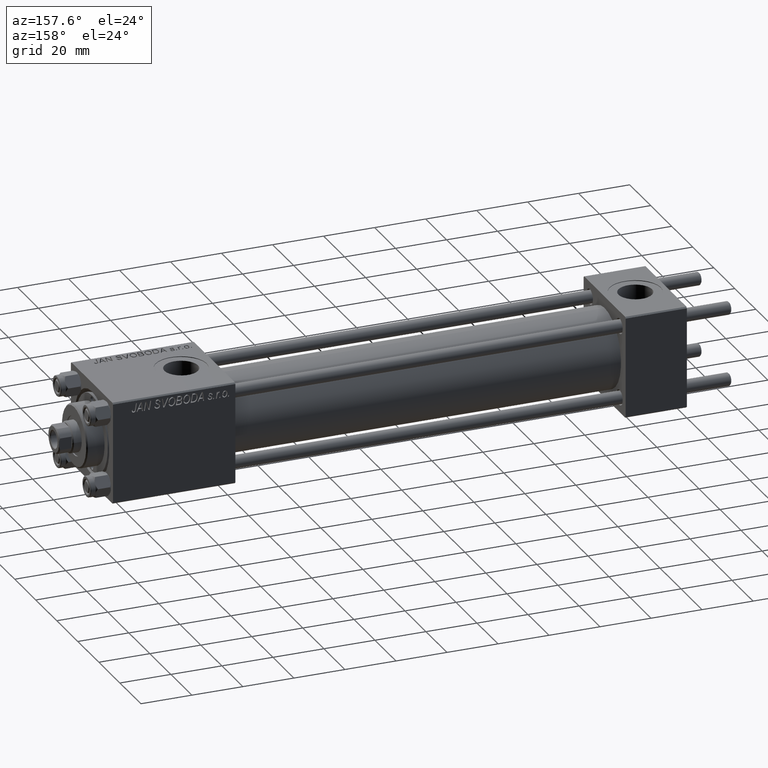
[diagram: clean part render]
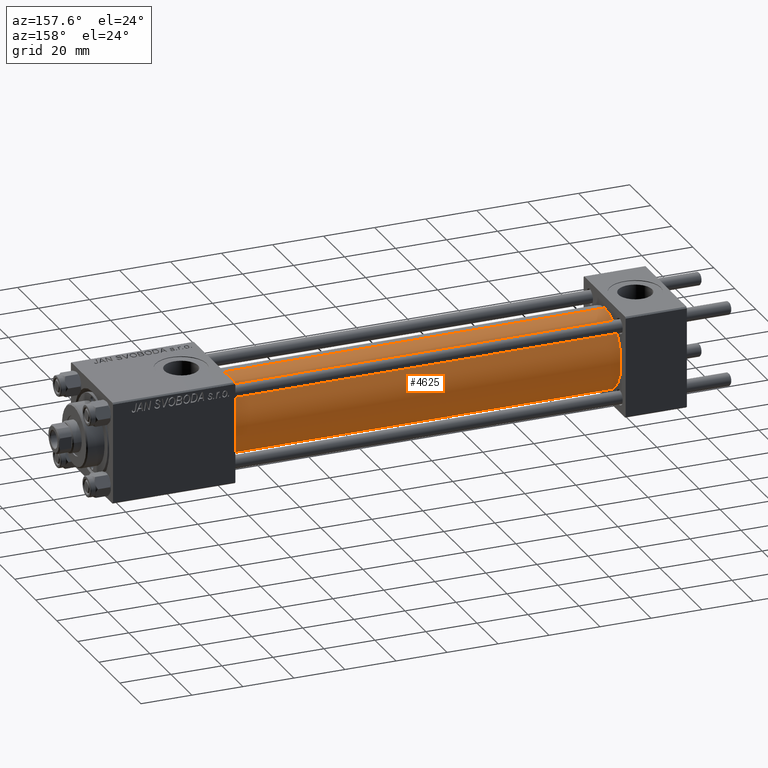
[diagram: same view with one face highlighted and labeled with its STEP entity id]
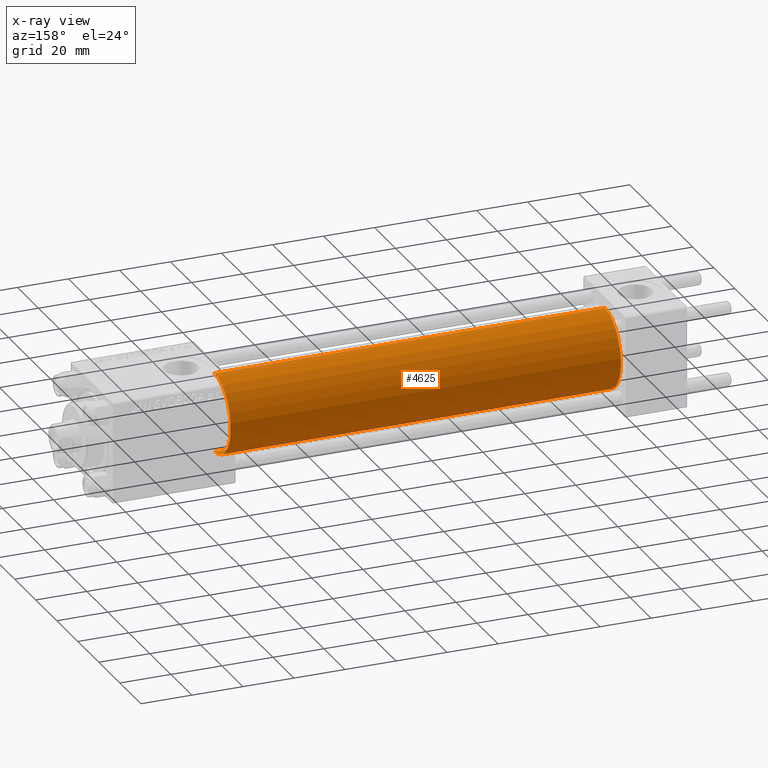
[diagram: x-ray of the same camera — body ghosted, the highlighted face saturated]
A machine part, auxiliary view. The second image highlights one B-rep face of the part: STEP entity #4625.
The next image is the same camera in x-ray: the body ghosted, the highlighted face saturated — about 0% of this face is hidden behind the body in this view.
In plain terms, the highlighted cylindrical surface (partial cylindrical patch) has radius 15.5 mm, axis along (-1, -0, -0).
Its self-contained STEP definition (entity closure, byte-faithful):
#1063 = CIRCLE ( 'NONE', #30111, 15.50000000000000000 ) ;
#1767 = LINE ( 'NONE', #43703, #13342 ) ;
#1810 = ORIENTED_EDGE ( 'NONE', *, *, #26476, .F. ) ;
#4101 = CARTESIAN_POINT ( 'NONE',  ( 23.99999999999999289, 0.000000000000000000, 15.50000000000000000 ) ) ;
#4625 = ADVANCED_FACE ( 'NONE', ( #19339 ), #15071, .T. ) ;
#4649 = AXIS2_PLACEMENT_3D ( 'NONE', #45399, #30016, #26226 ) ;
#4922 = VERTEX_POINT ( 'NONE', #4101 ) ;
#5912 = DIRECTION ( 'NONE',  ( -1.000000000000000000, -0.000000000000000000, -0.000000000000000000 ) ) ;
#6434 = CARTESIAN_POINT ( 'NONE',  ( 177.0000000000000000, 1.898202538678397557E-15, -15.50000000000000000 ) ) ;
#8932 = VERTEX_POINT ( 'NONE', #6434 ) ;
#13342 = VECTOR ( 'NONE', #28065, 1000.000000000000000 ) ;
#14820 = DIRECTION ( 'NONE',  ( 0.000000000000000000, 0.000000000000000000, 1.000000000000000000 ) ) ;
#14885 = DIRECTION ( 'NONE',  ( 1.000000000000000000, 0.000000000000000000, 0.000000000000000000 ) ) ;
#15029 = EDGE_CURVE ( 'NONE', #8932, #47889, #1767, .T. ) ;
#15071 = CYLINDRICAL_SURFACE ( 'NONE', #24256, 15.50000000000000000 ) ;
#17654 = VECTOR ( 'NONE', #5912, 1000.000000000000000 ) ;
#19339 = FACE_OUTER_BOUND ( 'NONE', #45538, .T. ) ;
#24256 = AXIS2_PLACEMENT_3D ( 'NONE', #45599, #34725, #14820 ) ;
#24368 = CARTESIAN_POINT ( 'NONE',  ( 177.0000000000000000, 0.000000000000000000, 15.50000000000000000 ) ) ;
#24668 = CARTESIAN_POINT ( 'NONE',  ( 177.0000000000000000, 0.000000000000000000, 15.50000000000000000 ) ) ;
#26226 = DIRECTION ( 'NONE',  ( 0.000000000000000000, 0.000000000000000000, -1.000000000000000000 ) ) ;
#26476 = EDGE_CURVE ( 'NONE', #8932, #44126, #33673, .T. ) ;
#28065 = DIRECTION ( 'NONE',  ( -1.000000000000000000, -0.000000000000000000, -0.000000000000000000 ) ) ;
#28660 = LINE ( 'NONE', #24368, #17654 ) ;
#30016 = DIRECTION ( 'NONE',  ( 1.000000000000000000, 0.000000000000000000, 0.000000000000000000 ) ) ;
#30111 = AXIS2_PLACEMENT_3D ( 'NONE', #49437, #14885, #30275 ) ;
#30275 = DIRECTION ( 'NONE',  ( 0.000000000000000000, 0.000000000000000000, 1.000000000000000000 ) ) ;
#31916 = EDGE_CURVE ( 'NONE', #44126, #4922, #28660, .T. ) ;
#33673 = CIRCLE ( 'NONE', #4649, 15.50000000000000000 ) ;
#34484 = CARTESIAN_POINT ( 'NONE',  ( 23.99999999999999289, 1.898202538678397557E-15, -15.50000000000000000 ) ) ;
#34725 = DIRECTION ( 'NONE',  ( -1.000000000000000000, -0.000000000000000000, -0.000000000000000000 ) ) ;
#35687 = ORIENTED_EDGE ( 'NONE', *, *, #31916, .F. ) ;
#38485 = ORIENTED_EDGE ( 'NONE', *, *, #15029, .T. ) ;
#39117 = EDGE_CURVE ( 'NONE', #47889, #4922, #1063, .T. ) ;
#40652 = ORIENTED_EDGE ( 'NONE', *, *, #39117, .T. ) ;
#43703 = CARTESIAN_POINT ( 'NONE',  ( 177.0000000000000000, 1.898202538678397557E-15, -15.50000000000000000 ) ) ;
#44126 = VERTEX_POINT ( 'NONE', #24668 ) ;
#45399 = CARTESIAN_POINT ( 'NONE',  ( 177.0000000000000000, 0.000000000000000000, 0.000000000000000000 ) ) ;
#45538 = EDGE_LOOP ( 'NONE', ( #1810, #38485, #40652, #35687 ) ) ;
#45599 = CARTESIAN_POINT ( 'NONE',  ( 177.0000000000000000, 0.000000000000000000, 0.000000000000000000 ) ) ;
#47889 = VERTEX_POINT ( 'NONE', #34484 ) ;
#49437 = CARTESIAN_POINT ( 'NONE',  ( 23.99999999999999289, 0.000000000000000000, 0.000000000000000000 ) ) ;